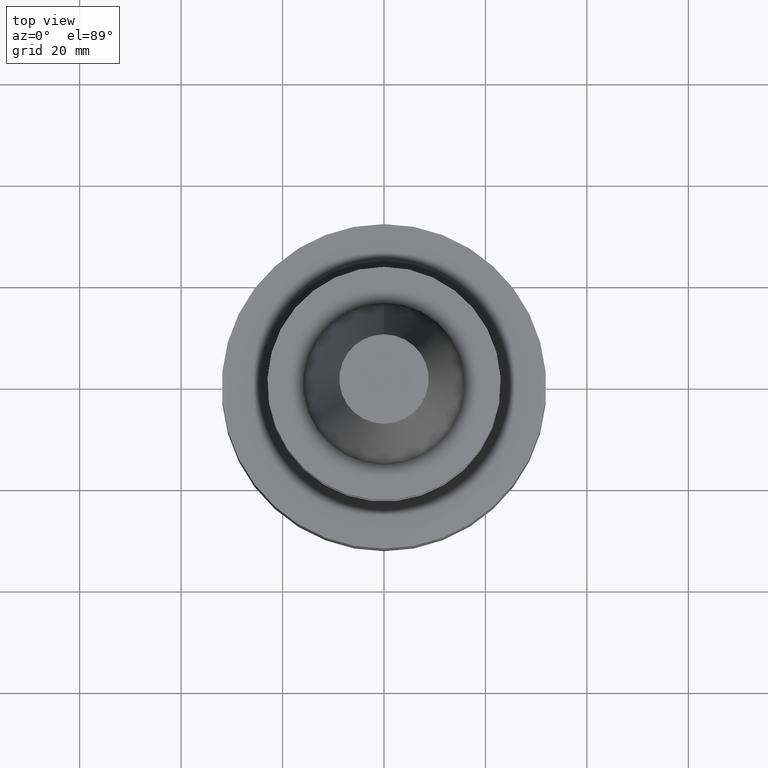
[diagram: clean part render]
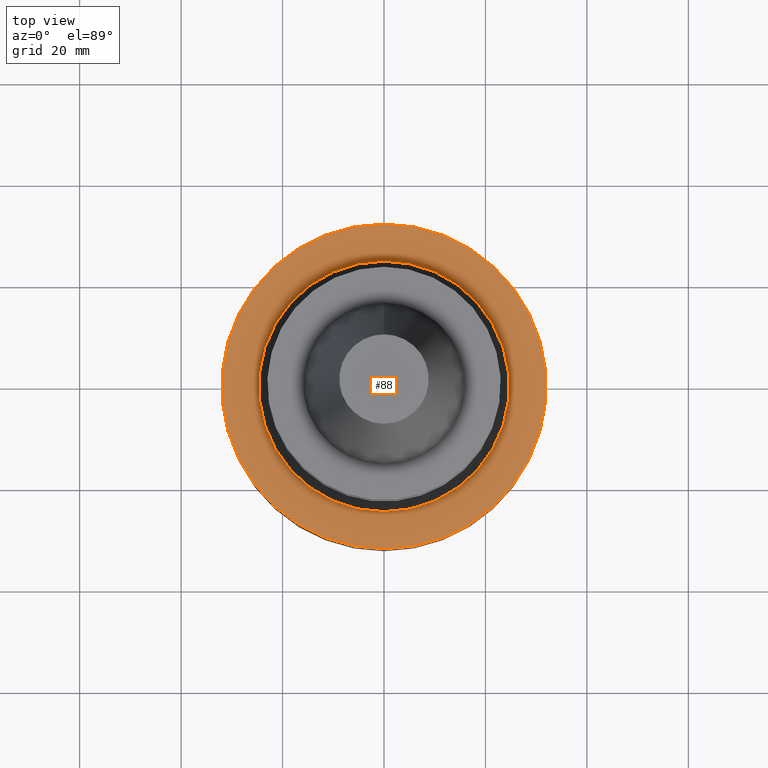
[diagram: same view with one face highlighted and labeled with its STEP entity id]
A machine part, top view. The second image highlights one B-rep face of the part: STEP entity #88.
In plain terms, the highlighted planar face has unit normal (-0, -0, 1).
Its self-contained STEP definition (entity closure, byte-faithful):
#88=ADVANCED_FACE('',(#128,#129),#130,.T.);
#128=FACE_OUTER_BOUND('',#171,.T.);
#129=FACE_BOUND('',#172,.T.);
#130=PLANE('',#173);
#171=EDGE_LOOP('',(#240));
#172=EDGE_LOOP('',(#241));
#173=AXIS2_PLACEMENT_3D('',#242,#243,#244);
#240=ORIENTED_EDGE('',*,*,#263,.F.);
#241=ORIENTED_EDGE('',*,*,#262,.T.);
#242=CARTESIAN_POINT('',(2.14313189850787E-015,28.35,-35.0));
#243=DIRECTION('',(-6.12323399573677E-017,-1.22464679914735E-016,1.0));
#244=DIRECTION('',(1.23259516440783E-032,-1.0,-1.22464679914735E-016));
#262=EDGE_CURVE('',#288,#288,#289,.T.);
#263=EDGE_CURVE('',#290,#290,#291,.T.);
#288=VERTEX_POINT('',#316);
#289=CIRCLE('',#317,24.7);
#290=VERTEX_POINT('',#318);
#291=CIRCLE('',#319,32.0);
#316=CARTESIAN_POINT('',(2.14313189850787E-015,24.7,-35.0));
#317=AXIS2_PLACEMENT_3D('',#356,#357,#358);
#318=CARTESIAN_POINT('',(2.14313189850787E-015,32.0,-35.0));
#319=AXIS2_PLACEMENT_3D('',#359,#360,#361);
#356=CARTESIAN_POINT('',(2.14313189850787E-015,4.28626379701574E-015,-35.0));
#357=DIRECTION('',(6.12323399573677E-017,1.22464679914735E-016,-1.0));
#358=DIRECTION('',(-1.23259516440783E-032,1.0,1.22464679914735E-016));
#359=CARTESIAN_POINT('',(2.14313189850787E-015,4.28626379701574E-015,-35.0));
#360=DIRECTION('',(6.12323399573677E-017,1.22464679914735E-016,-1.0));
#361=DIRECTION('',(-1.23259516440783E-032,1.0,1.22464679914735E-016));